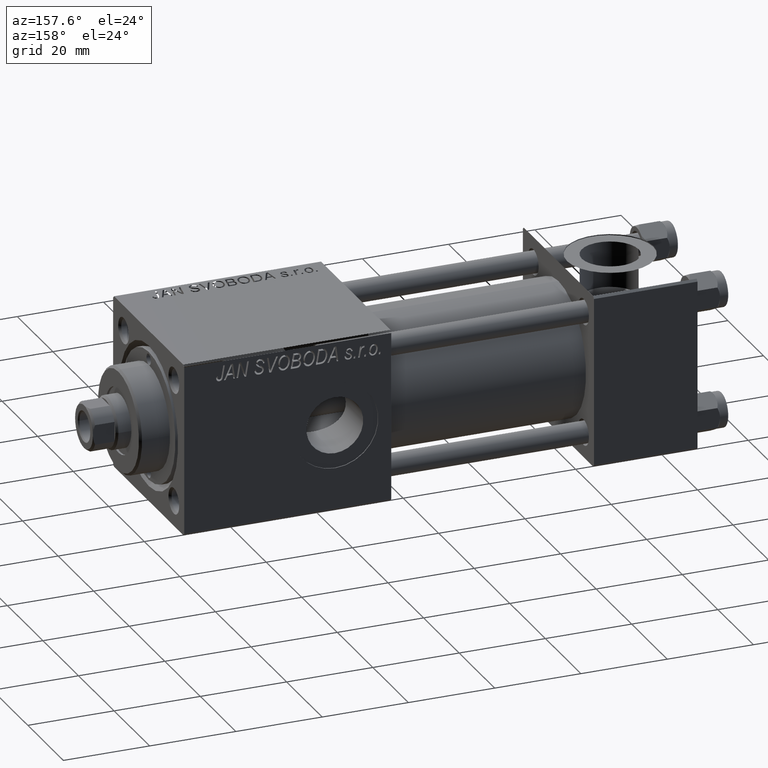
[diagram: clean part render]
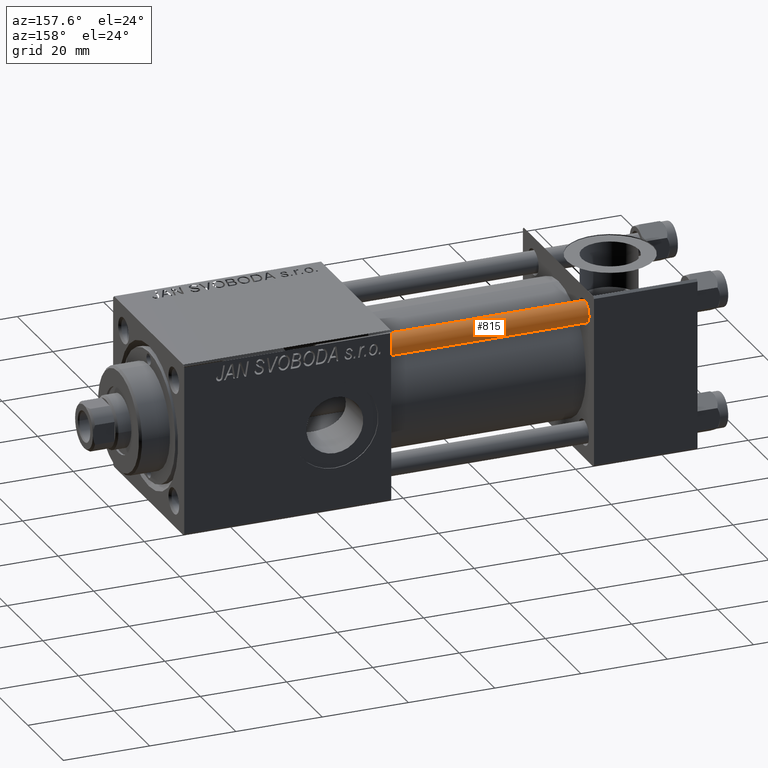
[diagram: same view with one face highlighted and labeled with its STEP entity id]
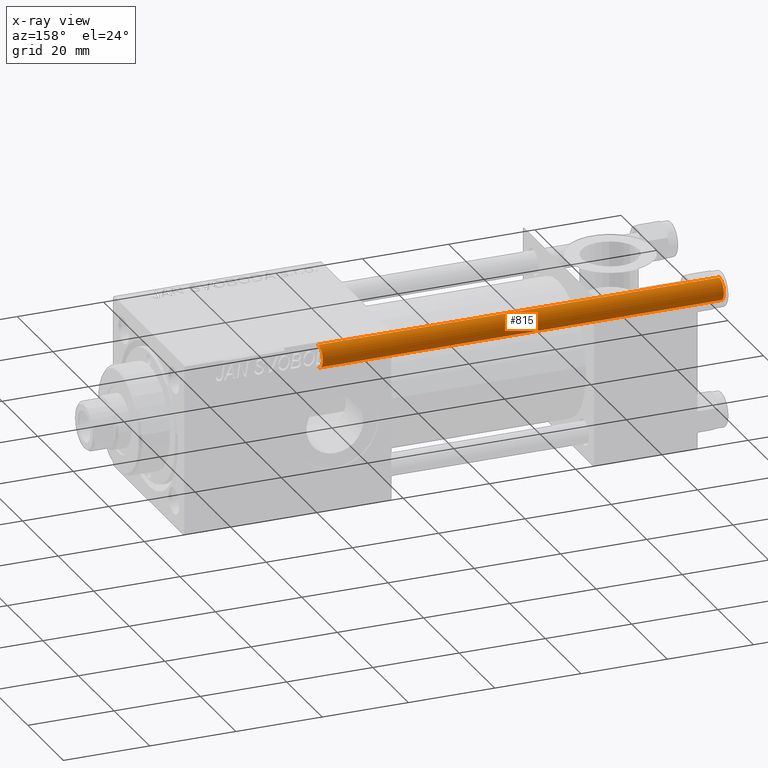
[diagram: x-ray of the same camera — body ghosted, the highlighted face saturated]
A machine part, auxiliary view. The second image highlights one B-rep face of the part: STEP entity #815.
The next image is the same camera in x-ray: the body ghosted, the highlighted face saturated — about 0% of this face is hidden behind the body in this view.
In plain terms, the highlighted cylindrical surface (edge-blend (fillet) strip) has radius 2.5 mm, axis along (-1, 0, 0).
Its self-contained STEP definition (entity closure, byte-faithful):
#706 = CARTESIAN_POINT ( 'NONE',  ( -2.500000000000000000, 0.000000000000000000, 0.5000000000000004441 ) ) ;
#815 = ADVANCED_FACE ( 'NONE', ( #50409 ), #41688, .T. ) ;
#3794 = EDGE_CURVE ( 'NONE', #22753, #45118, #39063, .T. ) ;
#4906 = CARTESIAN_POINT ( 'NONE',  ( 0.000000000000000000, 0.000000000000000000, 94.00000000000000000 ) ) ;
#5558 = EDGE_CURVE ( 'NONE', #51543, #48354, #22358, .T. ) ;
#5619 = DIRECTION ( 'NONE',  ( 1.000000000000000000, 0.000000000000000000, 0.000000000000000000 ) ) ;
#5674 = DIRECTION ( 'NONE',  ( -1.000000000000000000, 0.000000000000000000, 0.000000000000000000 ) ) ;
#6897 = EDGE_CURVE ( 'NONE', #48354, #22753, #33376, .T. ) ;
#6980 = CARTESIAN_POINT ( 'NONE',  ( -2.500000000000000000, 0.000000000000000000, 93.50000000000001421 ) ) ;
#7290 = DIRECTION ( 'NONE',  ( -0.000000000000000000, -0.000000000000000000, -1.000000000000000000 ) ) ;
#7619 = EDGE_LOOP ( 'NONE', ( #20498, #13332, #50622, #39250 ) ) ;
#9159 = DIRECTION ( 'NONE',  ( 1.000000000000000000, 0.000000000000000000, 0.000000000000000000 ) ) ;
#13332 = ORIENTED_EDGE ( 'NONE', *, *, #6897, .T. ) ;
#14729 = AXIS2_PLACEMENT_3D ( 'NONE', #37187, #16316, #9159 ) ;
#16316 = DIRECTION ( 'NONE',  ( 0.000000000000000000, 0.000000000000000000, -1.000000000000000000 ) ) ;
#17957 = AXIS2_PLACEMENT_3D ( 'NONE', #4906, #50141, #5674 ) ;
#20498 = ORIENTED_EDGE ( 'NONE', *, *, #5558, .T. ) ;
#22076 = VECTOR ( 'NONE', #7290, 1000.000000000000000 ) ;
#22358 = CIRCLE ( 'NONE', #14729, 2.500000000000000000 ) ;
#22753 = VERTEX_POINT ( 'NONE', #36576 ) ;
#28878 = CARTESIAN_POINT ( 'NONE',  ( 2.500000000000000000, 3.061616997868383141E-16, 94.00000000000000000 ) ) ;
#33376 = LINE ( 'NONE', #28878, #43477 ) ;
#36576 = CARTESIAN_POINT ( 'NONE',  ( 2.500000000000000000, 3.061616997868383141E-16, 0.5000000000000004441 ) ) ;
#37187 = CARTESIAN_POINT ( 'NONE',  ( 0.000000000000000000, 0.000000000000000000, 93.50000000000001421 ) ) ;
#39063 = CIRCLE ( 'NONE', #40769, 2.500000000000000000 ) ;
#39250 = ORIENTED_EDGE ( 'NONE', *, *, #42692, .F. ) ;
#40769 = AXIS2_PLACEMENT_3D ( 'NONE', #46633, #50613, #5619 ) ;
#41688 = CYLINDRICAL_SURFACE ( 'NONE', #17957, 2.500000000000000000 ) ;
#42692 = EDGE_CURVE ( 'NONE', #51543, #45118, #51233, .T. ) ;
#43477 = VECTOR ( 'NONE', #45034, 1000.000000000000000 ) ;
#43546 = CARTESIAN_POINT ( 'NONE',  ( -2.500000000000000000, 0.000000000000000000, 94.00000000000000000 ) ) ;
#45034 = DIRECTION ( 'NONE',  ( -0.000000000000000000, -0.000000000000000000, -1.000000000000000000 ) ) ;
#45118 = VERTEX_POINT ( 'NONE', #706 ) ;
#46633 = CARTESIAN_POINT ( 'NONE',  ( 0.000000000000000000, 0.000000000000000000, 0.5000000000000004441 ) ) ;
#48354 = VERTEX_POINT ( 'NONE', #48380 ) ;
#48380 = CARTESIAN_POINT ( 'NONE',  ( 2.500000000000000000, 3.061616997868383141E-16, 93.50000000000001421 ) ) ;
#50141 = DIRECTION ( 'NONE',  ( -0.000000000000000000, -0.000000000000000000, -1.000000000000000000 ) ) ;
#50409 = FACE_OUTER_BOUND ( 'NONE', #7619, .T. ) ;
#50613 = DIRECTION ( 'NONE',  ( -0.000000000000000000, -0.000000000000000000, 1.000000000000000000 ) ) ;
#50622 = ORIENTED_EDGE ( 'NONE', *, *, #3794, .T. ) ;
#51233 = LINE ( 'NONE', #43546, #22076 ) ;
#51543 = VERTEX_POINT ( 'NONE', #6980 ) ;